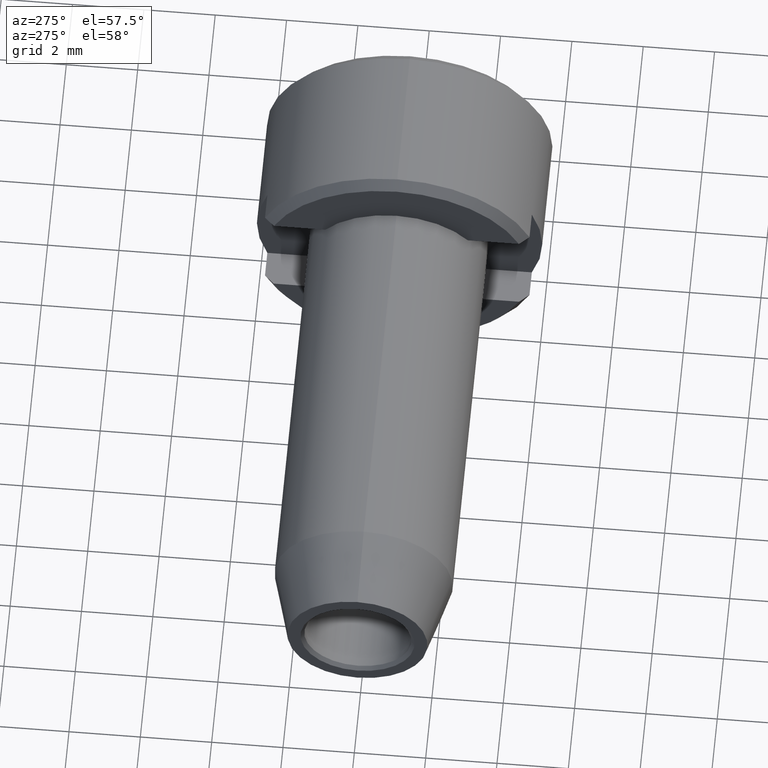
[diagram: clean part render]
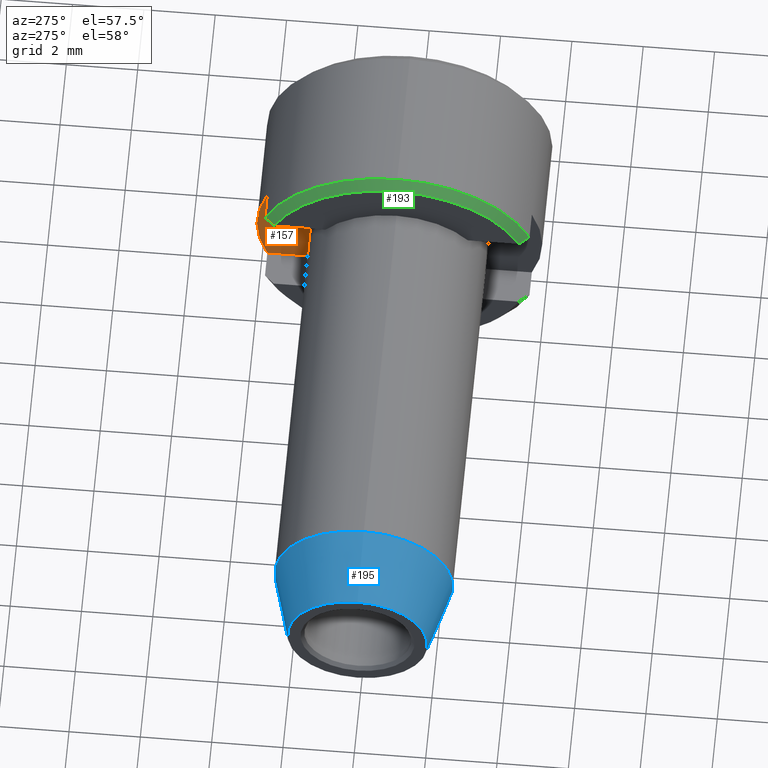
[diagram: same view with three faces highlighted in distinct colors, each labeled with its STEP entity id]
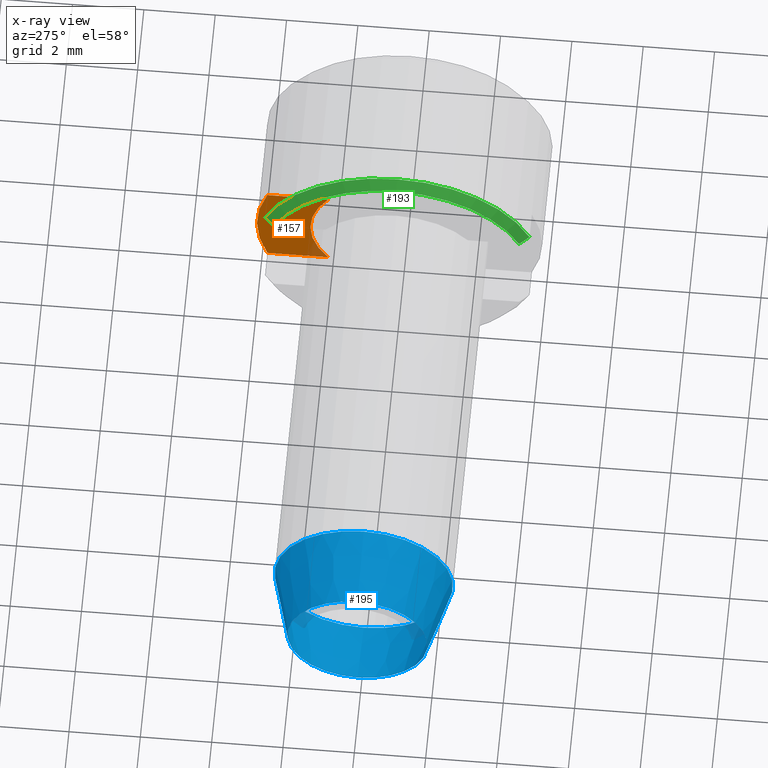
[diagram: x-ray of the same camera — body ghosted, the three highlighted faces saturated]
A machine part, auxiliary view with three faces highlighted in distinct colors.
The next image is the same camera in x-ray (body ghosted, the three faces saturated) — at least one of them is partly hidden behind the body in this view.
Their STEP definitions:

[orange] entity #157 — the highlighted planar face has unit normal (1, 0, 0).
#157 = ADVANCED_FACE( '', ( #284 ), #285, .F. );
#284 = FACE_OUTER_BOUND( '', #418, .T. );
#285 = PLANE( '', #419 );
#418 = EDGE_LOOP( '', ( #578, #579, #580, #581 ) );
#419 = AXIS2_PLACEMENT_3D( '', #582, #583, #584 );
#578 = ORIENTED_EDGE( '', *, *, #748, .F. );
#579 = ORIENTED_EDGE( '', *, *, #776, .F. );
#580 = ORIENTED_EDGE( '', *, *, #766, .F. );
#581 = ORIENTED_EDGE( '', *, *, #778, .F. );
#582 = CARTESIAN_POINT( '', ( -3.50000000000000, 0.000000000000000, 0.000000000000000 ) );
#583 = DIRECTION( '', ( 1.00000000000000, 0.000000000000000, 0.000000000000000 ) );
#584 = DIRECTION( '', ( 0.000000000000000, 0.000000000000000, -1.00000000000000 ) );
#748 = EDGE_CURVE( '', #834, #827, #836, .T. );
#766 = EDGE_CURVE( '', #863, #865, #866, .T. );
#776 = EDGE_CURVE( '', #865, #834, #882, .T. );
#778 = EDGE_CURVE( '', #827, #863, #884, .F. );
#827 = VERTEX_POINT( '', #950 );
#834 = VERTEX_POINT( '', #962 );
#836 = LINE( '', #965, #966 );
#863 = VERTEX_POINT( '', #994 );
#865 = VERTEX_POINT( '', #997 );
#866 = LINE( '', #998, #999 );
#882 = CIRCLE( '', #1022, 4.00000000000000 );
#884 = CIRCLE( '', #1024, 2.50000000000000 );
#950 = CARTESIAN_POINT( '', ( -3.50000000000000, 2.00000000000000, 1.50000000000000 ) );
#962 = CARTESIAN_POINT( '', ( -3.50000000000000, 3.70809924354784, 1.50000000000000 ) );
#965 = CARTESIAN_POINT( '', ( -3.50000000000000, 22.5000000000000, 1.50000000000000 ) );
#966 = VECTOR( '', #1101, 1000.00000000000 );
#994 = CARTESIAN_POINT( '', ( -3.50000000000000, 2.00000000000000, -1.50000000000000 ) );
#997 = CARTESIAN_POINT( '', ( -3.50000000000000, 3.70809924354783, -1.50000000000000 ) );
#998 = CARTESIAN_POINT( '', ( -3.50000000000000, -22.5000000000000, -1.50000000000000 ) );
#999 = VECTOR( '', #1131, 1000.00000000000 );
#1022 = AXIS2_PLACEMENT_3D( '', #1145, #1146, #1147 );
#1024 = AXIS2_PLACEMENT_3D( '', #1148, #1149, #1150 );
#1101 = DIRECTION( '', ( 0.000000000000000, -1.00000000000000, 0.000000000000000 ) );
#1131 = DIRECTION( '', ( 0.000000000000000, 1.00000000000000, 0.000000000000000 ) );
#1145 = CARTESIAN_POINT( '', ( -3.50000000000000, 0.000000000000000, 0.000000000000000 ) );
#1146 = DIRECTION( '', ( 1.00000000000000, 0.000000000000000, 0.000000000000000 ) );
#1147 = DIRECTION( '', ( 0.000000000000000, 0.000000000000000, -1.00000000000000 ) );
#1148 = CARTESIAN_POINT( '', ( -3.50000000000000, 0.000000000000000, 0.000000000000000 ) );
#1149 = DIRECTION( '', ( 1.00000000000000, 0.000000000000000, 0.000000000000000 ) );
#1150 = DIRECTION( '', ( 0.000000000000000, 0.000000000000000, -1.00000000000000 ) );

[blue] entity #195 — the highlighted conical surface has half-angle 15 deg.
#195 = ADVANCED_FACE( '', ( #354, #355 ), #356, .T. );
#354 = FACE_OUTER_BOUND( '', #488, .T. );
#355 = FACE_BOUND( '', #489, .T. );
#356 = CONICAL_SURFACE( '', #490, 1.96410161513775, 0.261799387799149 );
#488 = EDGE_LOOP( '', ( #713 ) );
#489 = EDGE_LOOP( '', ( #714 ) );
#490 = AXIS2_PLACEMENT_3D( '', #715, #716, #717 );
#713 = ORIENTED_EDGE( '', *, *, #818, .T. );
#714 = ORIENTED_EDGE( '', *, *, #781, .F. );
#715 = CARTESIAN_POINT( '', ( -17.0000000000000, 0.000000000000000, 0.000000000000000 ) );
#716 = DIRECTION( '', ( 1.00000000000000, -0.000000000000000, 0.000000000000000 ) );
#717 = DIRECTION( '', ( 0.000000000000000, 0.000000000000000, -1.00000000000000 ) );
#781 = EDGE_CURVE( '', #888, #888, #889, .T. );
#818 = EDGE_CURVE( '', #940, #940, #941, .T. );
#888 = VERTEX_POINT( '', #1028 );
#889 = CIRCLE( '', #1029, 1.96410161513775 );
#940 = VERTEX_POINT( '', #1091 );
#941 = CIRCLE( '', #1092, 2.50000000000000 );
#1028 = CARTESIAN_POINT( '', ( -17.0000000000000, 0.000000000000000, 1.96410161513775 ) );
#1029 = AXIS2_PLACEMENT_3D( '', #1154, #1155, #1156 );
#1091 = CARTESIAN_POINT( '', ( -15.0000000000000, 0.000000000000000, 2.50000000000000 ) );
#1092 = AXIS2_PLACEMENT_3D( '', #1201, #1202, #1203 );
#1154 = CARTESIAN_POINT( '', ( -17.0000000000000, 0.000000000000000, 0.000000000000000 ) );
#1155 = DIRECTION( '', ( -1.00000000000000, 0.000000000000000, 0.000000000000000 ) );
#1156 = DIRECTION( '', ( 0.000000000000000, 0.000000000000000, 1.00000000000000 ) );
#1201 = CARTESIAN_POINT( '', ( -15.0000000000000, 0.000000000000000, 0.000000000000000 ) );
#1202 = DIRECTION( '', ( -1.00000000000000, 0.000000000000000, 0.000000000000000 ) );
#1203 = DIRECTION( '', ( 0.000000000000000, 0.000000000000000, 1.00000000000000 ) );

[green] entity #193 — the highlighted conical surface has half-angle 45 deg.
#193 = ADVANCED_FACE( '', ( #351 ), #352, .T. );
#351 = FACE_OUTER_BOUND( '', #485, .T. );
#352 = CONICAL_SURFACE( '', #486, 3.75000000000000, 0.785398163397448 );
#485 = EDGE_LOOP( '', ( #705, #706, #707, #708 ) );
#486 = AXIS2_PLACEMENT_3D( '', #709, #710, #711 );
#705 = ORIENTED_EDGE( '', *, *, #771, .F. );
#706 = ORIENTED_EDGE( '', *, *, #746, .T. );
#707 = ORIENTED_EDGE( '', *, *, #759, .F. );
#708 = ORIENTED_EDGE( '', *, *, #804, .T. );
#709 = CARTESIAN_POINT( '', ( -4.50000000000000, 0.000000000000000, 0.000000000000000 ) );
#710 = DIRECTION( '', ( 1.00000000000000, -0.000000000000000, 0.000000000000000 ) );
#711 = DIRECTION( '', ( 0.000000000000000, 0.000000000000000, -1.00000000000000 ) );
#746 = EDGE_CURVE( '', #832, #830, #833, .T. );
#759 = EDGE_CURVE( '', #852, #830, #854, .F. );
#771 = EDGE_CURVE( '', #832, #873, #874, .T. );
#804 = EDGE_CURVE( '', #852, #873, #921, .T. );
#830 = VERTEX_POINT( '', #954 );
#832 = VERTEX_POINT( '', #957 );
#833 = B_SPLINE_CURVE_WITH_KNOTS( '', 3, ( #958, #959, #960, #961 ), .UNSPECIFIED., .F., .F., ( 4, 4 ), ( 0.00690549877276442, 0.00727432095429745 ), .UNSPECIFIED. );
#852 = VERTEX_POINT( '', #982 );
#854 = CIRCLE( '', #985, 3.75000000000000 );
#873 = VERTEX_POINT( '', #1011 );
#874 = CIRCLE( '', #1012, 4.00000000000000 );
#921 = B_SPLINE_CURVE_WITH_KNOTS( '', 3, ( #1069, #1070, #1071, #1072 ), .UNSPECIFIED., .F., .F., ( 4, 4 ), ( 0.0155450273879748, 0.0159094868715006 ), .UNSPECIFIED. );
#954 = CARTESIAN_POINT( '', ( -4.50000000000000, 3.43693177121689, 1.50000000000000 ) );
#957 = CARTESIAN_POINT( '', ( -4.25000000000000, 3.70809924354784, 1.50000000000000 ) );
#958 = CARTESIAN_POINT( '', ( -4.25000000000000, 3.70809924354783, 1.50000000000000 ) );
#959 = CARTESIAN_POINT( '', ( -4.33358205083319, 3.61793763206602, 1.50000000000000 ) );
#960 = CARTESIAN_POINT( '', ( -4.41693335280340, 3.52756491371798, 1.50000000000000 ) );
#961 = CARTESIAN_POINT( '', ( -4.50000000000000, 3.43693177121688, 1.50000000000000 ) );
#982 = CARTESIAN_POINT( '', ( -4.50000000000000, -3.43693177121689, 1.50000000000000 ) );
#985 = AXIS2_PLACEMENT_3D( '', #1118, #1119, #1120 );
#1011 = CARTESIAN_POINT( '', ( -4.25000000000000, -3.70809924354784, 1.50000000000000 ) );
#1012 = AXIS2_PLACEMENT_3D( '', #1134, #1135, #1136 );
#1069 = CARTESIAN_POINT( '', ( -4.50000000000000, -3.43693177121688, 1.50000000000000 ) );
#1070 = CARTESIAN_POINT( '', ( -4.41693228354756, -3.52756608037175, 1.50000000000000 ) );
#1071 = CARTESIAN_POINT( '', ( -4.33358104745866, -3.61793871442597, 1.50000000000000 ) );
#1072 = CARTESIAN_POINT( '', ( -4.25000000000000, -3.70809924354783, 1.50000000000000 ) );
#1118 = CARTESIAN_POINT( '', ( -4.50000000000000, 0.000000000000000, 0.000000000000000 ) );
#1119 = DIRECTION( '', ( 1.00000000000000, 0.000000000000000, 0.000000000000000 ) );
#1120 = DIRECTION( '', ( 0.000000000000000, 0.000000000000000, -1.00000000000000 ) );
#1134 = CARTESIAN_POINT( '', ( -4.25000000000000, 0.000000000000000, 0.000000000000000 ) );
#1135 = DIRECTION( '', ( 1.00000000000000, 0.000000000000000, 0.000000000000000 ) );
#1136 = DIRECTION( '', ( 0.000000000000000, 0.000000000000000, -1.00000000000000 ) );